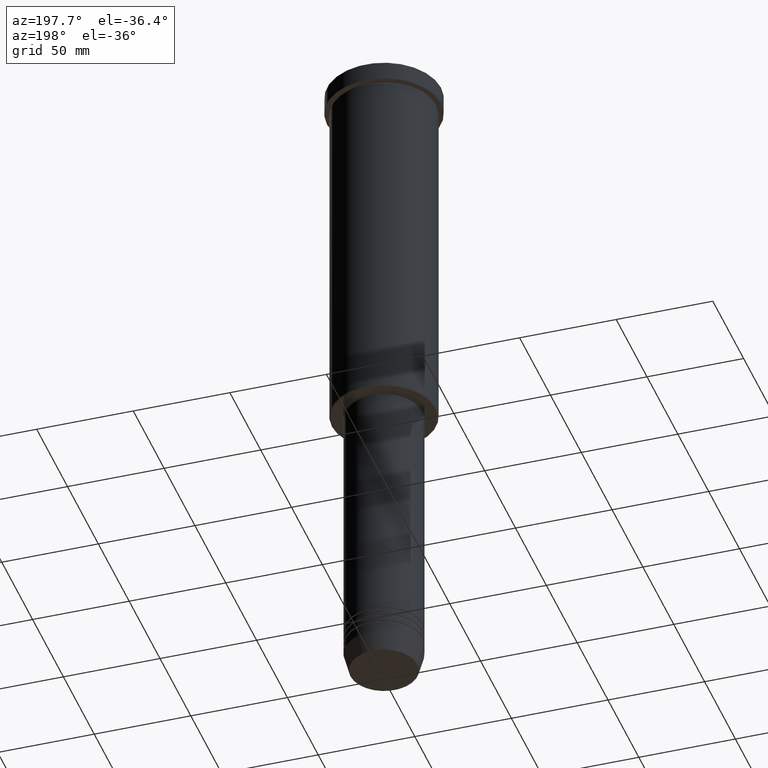
[diagram: clean part render]
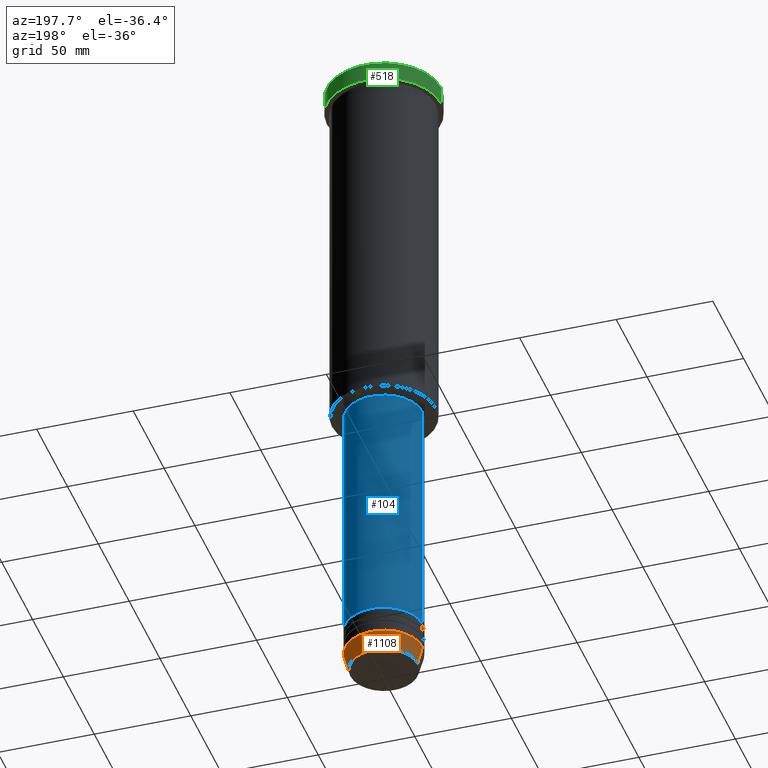
[diagram: same view with three faces highlighted in distinct colors, each labeled with its STEP entity id]
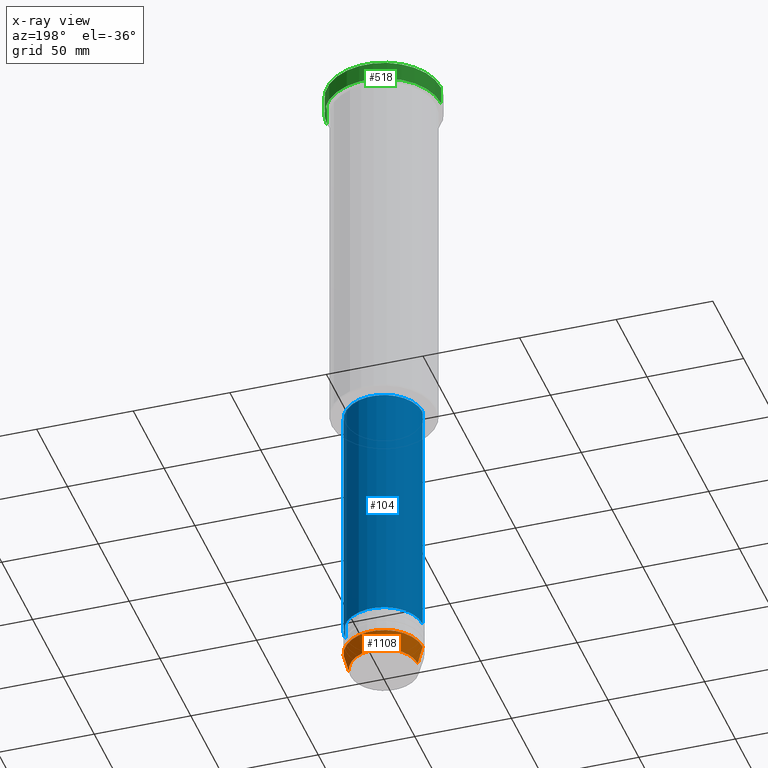
[diagram: x-ray of the same camera — body ghosted, the three highlighted faces saturated]
A machine part, auxiliary view with three faces highlighted in distinct colors.
The next image is the same camera in x-ray (body ghosted, the three faces saturated) — at least one of them is partly hidden behind the body in this view.
Their STEP definitions:

[orange] entity #1108 — the highlighted conical surface has half-angle 15 deg.
#28 = DIRECTION ( 'NONE',  ( 1.000000000000000000, 0.000000000000000000, 0.000000000000000000 ) ) ;
#46 = DIRECTION ( 'NONE',  ( 1.000000000000000000, 0.000000000000000000, 0.000000000000000000 ) ) ;
#48 = EDGE_CURVE ( 'NONE', #399, #515, #307, .T. ) ;
#69 = LINE ( 'NONE', #434, #957 ) ;
#86 = VERTEX_POINT ( 'NONE', #1175 ) ;
#156 = EDGE_LOOP ( 'NONE', ( #391, #929, #1144, #807 ) ) ;
#209 = AXIS2_PLACEMENT_3D ( 'NONE', #1061, #863, #46 ) ;
#272 = CARTESIAN_POINT ( 'NONE',  ( -17.41980749484382684, 2.291302373663531915E-15, -350.6294095225512706 ) ) ;
#283 = VERTEX_POINT ( 'NONE', #923 ) ;
#294 = DIRECTION ( 'NONE',  ( -0.000000000000000000, -0.000000000000000000, 1.000000000000000000 ) ) ;
#307 = CIRCLE ( 'NONE', #1112, 17.41980749484382684 ) ;
#312 = EDGE_CURVE ( 'NONE', #515, #86, #354, .T. ) ;
#354 = LINE ( 'NONE', #603, #1151 ) ;
#391 = ORIENTED_EDGE ( 'NONE', *, *, #48, .T. ) ;
#397 = DIRECTION ( 'NONE',  ( 1.000000000000000000, 0.000000000000000000, 0.000000000000000000 ) ) ;
#399 = VERTEX_POINT ( 'NONE', #1168 ) ;
#407 = CONICAL_SURFACE ( 'NONE', #1077, 20.00000000000000000, 0.2617993877991499074 ) ;
#410 = CARTESIAN_POINT ( 'NONE',  ( 0.000000000000000000, 0.000000000000000000, -341.0000000000000000 ) ) ;
#434 = CARTESIAN_POINT ( 'NONE',  ( 20.00000000000000000, 0.000000000000000000, -341.0000000000000000 ) ) ;
#515 = VERTEX_POINT ( 'NONE', #272 ) ;
#603 = CARTESIAN_POINT ( 'NONE',  ( -20.00000000000000000, 2.449293598294706513E-15, -341.0000000000000000 ) ) ;
#614 = EDGE_CURVE ( 'NONE', #283, #86, #1012, .T. ) ;
#768 = FACE_OUTER_BOUND ( 'NONE', #156, .T. ) ;
#788 = DIRECTION ( 'NONE',  ( 0.2588190451025211836, 0.000000000000000000, 0.9659258262890680902 ) ) ;
#807 = ORIENTED_EDGE ( 'NONE', *, *, #864, .F. ) ;
#863 = DIRECTION ( 'NONE',  ( -0.000000000000000000, -0.000000000000000000, 1.000000000000000000 ) ) ;
#864 = EDGE_CURVE ( 'NONE', #399, #283, #69, .T. ) ;
#923 = CARTESIAN_POINT ( 'NONE',  ( 20.00000000000000000, 0.000000000000000000, -341.0000000000000000 ) ) ;
#929 = ORIENTED_EDGE ( 'NONE', *, *, #312, .T. ) ;
#957 = VECTOR ( 'NONE', #788, 1000.000000000000114 ) ;
#995 = DIRECTION ( 'NONE',  ( -0.2588190451025211836, 3.169619151431770488E-17, 0.9659258262890680902 ) ) ;
#1012 = CIRCLE ( 'NONE', #209, 20.00000000000000000 ) ;
#1061 = CARTESIAN_POINT ( 'NONE',  ( 0.000000000000000000, 0.000000000000000000, -341.0000000000000000 ) ) ;
#1077 = AXIS2_PLACEMENT_3D ( 'NONE', #410, #1138, #397 ) ;
#1108 = ADVANCED_FACE ( 'NONE', ( #768 ), #407, .T. ) ;
#1112 = AXIS2_PLACEMENT_3D ( 'NONE', #1120, #294, #28 ) ;
#1120 = CARTESIAN_POINT ( 'NONE',  ( 0.000000000000000000, 0.000000000000000000, -350.6294095225512706 ) ) ;
#1138 = DIRECTION ( 'NONE',  ( -0.000000000000000000, -0.000000000000000000, 1.000000000000000000 ) ) ;
#1144 = ORIENTED_EDGE ( 'NONE', *, *, #614, .F. ) ;
#1151 = VECTOR ( 'NONE', #995, 1000.000000000000114 ) ;
#1168 = CARTESIAN_POINT ( 'NONE',  ( 17.41980749484382684, 0.000000000000000000, -350.6294095225512706 ) ) ;
#1175 = CARTESIAN_POINT ( 'NONE',  ( -20.00000000000000000, 2.449293598294706513E-15, -341.0000000000000000 ) ) ;

[blue] entity #104 — the highlighted cylindrical surface (partial cylindrical patch) has radius 20 mm, axis along (-0, -0, 1).
#3 = DIRECTION ( 'NONE',  ( -0.000000000000000000, -0.000000000000000000, 1.000000000000000000 ) ) ;
#16 = ORIENTED_EDGE ( 'NONE', *, *, #963, .T. ) ;
#20 = DIRECTION ( 'NONE',  ( -0.000000000000000000, -0.000000000000000000, 1.000000000000000000 ) ) ;
#30 = CARTESIAN_POINT ( 'NONE',  ( 0.000000000000000000, 0.000000000000000000, -326.9999999999999432 ) ) ;
#104 = ADVANCED_FACE ( 'NONE', ( #1104 ), #280, .T. ) ;
#105 = DIRECTION ( 'NONE',  ( 1.000000000000000000, 0.000000000000000000, 0.000000000000000000 ) ) ;
#107 = DIRECTION ( 'NONE',  ( -0.000000000000000000, -0.000000000000000000, 1.000000000000000000 ) ) ;
#115 = AXIS2_PLACEMENT_3D ( 'NONE', #30, #999, #105 ) ;
#143 = ORIENTED_EDGE ( 'NONE', *, *, #469, .T. ) ;
#181 = CARTESIAN_POINT ( 'NONE',  ( 19.99999999999999645, 0.000000000000000000, -196.9999999999999432 ) ) ;
#186 = DIRECTION ( 'NONE',  ( 1.000000000000000000, 0.000000000000000000, 0.000000000000000000 ) ) ;
#262 = VERTEX_POINT ( 'NONE', #1033 ) ;
#280 = CYLINDRICAL_SURFACE ( 'NONE', #726, 19.99999999999999645 ) ;
#289 = CARTESIAN_POINT ( 'NONE',  ( -19.99999999999999645, 2.449293598294706119E-15, 0.000000000000000000 ) ) ;
#296 = LINE ( 'NONE', #473, #691 ) ;
#377 = CARTESIAN_POINT ( 'NONE',  ( 0.000000000000000000, 0.000000000000000000, -196.9999999999999432 ) ) ;
#385 = DIRECTION ( 'NONE',  ( 1.000000000000000000, 0.000000000000000000, 0.000000000000000000 ) ) ;
#431 = ORIENTED_EDGE ( 'NONE', *, *, #870, .F. ) ;
#466 = ORIENTED_EDGE ( 'NONE', *, *, #908, .F. ) ;
#469 = EDGE_CURVE ( 'NONE', #1052, #503, #953, .T. ) ;
#473 = CARTESIAN_POINT ( 'NONE',  ( 19.99999999999999645, 0.000000000000000000, 0.000000000000000000 ) ) ;
#503 = VERTEX_POINT ( 'NONE', #927 ) ;
#534 = CIRCLE ( 'NONE', #769, 19.99999999999999645 ) ;
#681 = CARTESIAN_POINT ( 'NONE',  ( 20.00000000000000000, 0.000000000000000000, -326.9999999999999432 ) ) ;
#691 = VECTOR ( 'NONE', #3, 1000.000000000000000 ) ;
#726 = AXIS2_PLACEMENT_3D ( 'NONE', #1007, #107, #186 ) ;
#769 = AXIS2_PLACEMENT_3D ( 'NONE', #377, #1105, #385 ) ;
#870 = EDGE_CURVE ( 'NONE', #1052, #984, #296, .T. ) ;
#908 = EDGE_CURVE ( 'NONE', #984, #262, #534, .T. ) ;
#927 = CARTESIAN_POINT ( 'NONE',  ( -20.00000000000000000, 2.449293598294706513E-15, -326.9999999999999432 ) ) ;
#937 = VECTOR ( 'NONE', #20, 1000.000000000000000 ) ;
#953 = CIRCLE ( 'NONE', #115, 20.00000000000000000 ) ;
#963 = EDGE_CURVE ( 'NONE', #503, #262, #1018, .T. ) ;
#964 = EDGE_LOOP ( 'NONE', ( #143, #16, #466, #431 ) ) ;
#984 = VERTEX_POINT ( 'NONE', #181 ) ;
#999 = DIRECTION ( 'NONE',  ( -0.000000000000000000, -0.000000000000000000, 1.000000000000000000 ) ) ;
#1007 = CARTESIAN_POINT ( 'NONE',  ( 0.000000000000000000, 0.000000000000000000, 0.000000000000000000 ) ) ;
#1018 = LINE ( 'NONE', #289, #937 ) ;
#1033 = CARTESIAN_POINT ( 'NONE',  ( -19.99999999999999645, 2.449293598294706119E-15, -196.9999999999999432 ) ) ;
#1052 = VERTEX_POINT ( 'NONE', #681 ) ;
#1104 = FACE_OUTER_BOUND ( 'NONE', #964, .T. ) ;
#1105 = DIRECTION ( 'NONE',  ( -0.000000000000000000, -0.000000000000000000, 1.000000000000000000 ) ) ;

[green] entity #518 — the highlighted cylindrical surface (partial cylindrical patch) has radius 29.5 mm, axis along (-0, -0, 1).
#5 = CIRCLE ( 'NONE', #1056, 29.50000000000000000 ) ;
#47 = ORIENTED_EDGE ( 'NONE', *, *, #813, .T. ) ;
#61 = CIRCLE ( 'NONE', #879, 29.50000000000000000 ) ;
#78 = AXIS2_PLACEMENT_3D ( 'NONE', #88, #820, #368 ) ;
#88 = CARTESIAN_POINT ( 'NONE',  ( 0.000000000000000000, 0.000000000000000000, 0.000000000000000000 ) ) ;
#97 = VECTOR ( 'NONE', #946, 1000.000000000000000 ) ;
#99 = FACE_OUTER_BOUND ( 'NONE', #793, .T. ) ;
#145 = CARTESIAN_POINT ( 'NONE',  ( -29.50000000000000000, 3.612708057484691604E-15, -9.999999999999992895 ) ) ;
#208 = VECTOR ( 'NONE', #798, 1000.000000000000000 ) ;
#254 = CARTESIAN_POINT ( 'NONE',  ( 0.000000000000000000, 0.000000000000000000, -0.5000000000000559552 ) ) ;
#270 = CARTESIAN_POINT ( 'NONE',  ( 0.000000000000000000, 0.000000000000000000, -9.999999999999992895 ) ) ;
#298 = ORIENTED_EDGE ( 'NONE', *, *, #395, .T. ) ;
#368 = DIRECTION ( 'NONE',  ( 1.000000000000000000, 0.000000000000000000, 0.000000000000000000 ) ) ;
#376 = VERTEX_POINT ( 'NONE', #894 ) ;
#394 = VERTEX_POINT ( 'NONE', #611 ) ;
#395 = EDGE_CURVE ( 'NONE', #772, #988, #978, .T. ) ;
#436 = ORIENTED_EDGE ( 'NONE', *, *, #980, .T. ) ;
#463 = CYLINDRICAL_SURFACE ( 'NONE', #78, 29.50000000000000000 ) ;
#518 = ADVANCED_FACE ( 'NONE', ( #99 ), #463, .T. ) ;
#522 = CARTESIAN_POINT ( 'NONE',  ( -29.50000000000000000, 3.612708057484691604E-15, 0.000000000000000000 ) ) ;
#544 = CARTESIAN_POINT ( 'NONE',  ( -29.50000000000000000, 3.612708057484691604E-15, -0.5000000000000559552 ) ) ;
#579 = LINE ( 'NONE', #682, #97 ) ;
#611 = CARTESIAN_POINT ( 'NONE',  ( 29.50000000000000000, 0.000000000000000000, -0.5000000000000559552 ) ) ;
#635 = DIRECTION ( 'NONE',  ( -0.000000000000000000, -0.000000000000000000, 1.000000000000000000 ) ) ;
#672 = EDGE_CURVE ( 'NONE', #376, #394, #579, .T. ) ;
#682 = CARTESIAN_POINT ( 'NONE',  ( 29.50000000000000000, 0.000000000000000000, 0.000000000000000000 ) ) ;
#763 = ORIENTED_EDGE ( 'NONE', *, *, #672, .F. ) ;
#772 = VERTEX_POINT ( 'NONE', #145 ) ;
#793 = EDGE_LOOP ( 'NONE', ( #436, #298, #47, #763 ) ) ;
#798 = DIRECTION ( 'NONE',  ( -0.000000000000000000, -0.000000000000000000, 1.000000000000000000 ) ) ;
#813 = EDGE_CURVE ( 'NONE', #988, #394, #61, .T. ) ;
#820 = DIRECTION ( 'NONE',  ( -0.000000000000000000, -0.000000000000000000, 1.000000000000000000 ) ) ;
#879 = AXIS2_PLACEMENT_3D ( 'NONE', #254, #1084, #1089 ) ;
#894 = CARTESIAN_POINT ( 'NONE',  ( 29.50000000000000000, 0.000000000000000000, -9.999999999999992895 ) ) ;
#946 = DIRECTION ( 'NONE',  ( -0.000000000000000000, -0.000000000000000000, 1.000000000000000000 ) ) ;
#978 = LINE ( 'NONE', #522, #208 ) ;
#980 = EDGE_CURVE ( 'NONE', #376, #772, #5, .T. ) ;
#988 = VERTEX_POINT ( 'NONE', #544 ) ;
#1003 = DIRECTION ( 'NONE',  ( 1.000000000000000000, 0.000000000000000000, 0.000000000000000000 ) ) ;
#1056 = AXIS2_PLACEMENT_3D ( 'NONE', #270, #635, #1003 ) ;
#1084 = DIRECTION ( 'NONE',  ( 0.000000000000000000, 0.000000000000000000, -1.000000000000000000 ) ) ;
#1089 = DIRECTION ( 'NONE',  ( 1.000000000000000000, 0.000000000000000000, 0.000000000000000000 ) ) ;